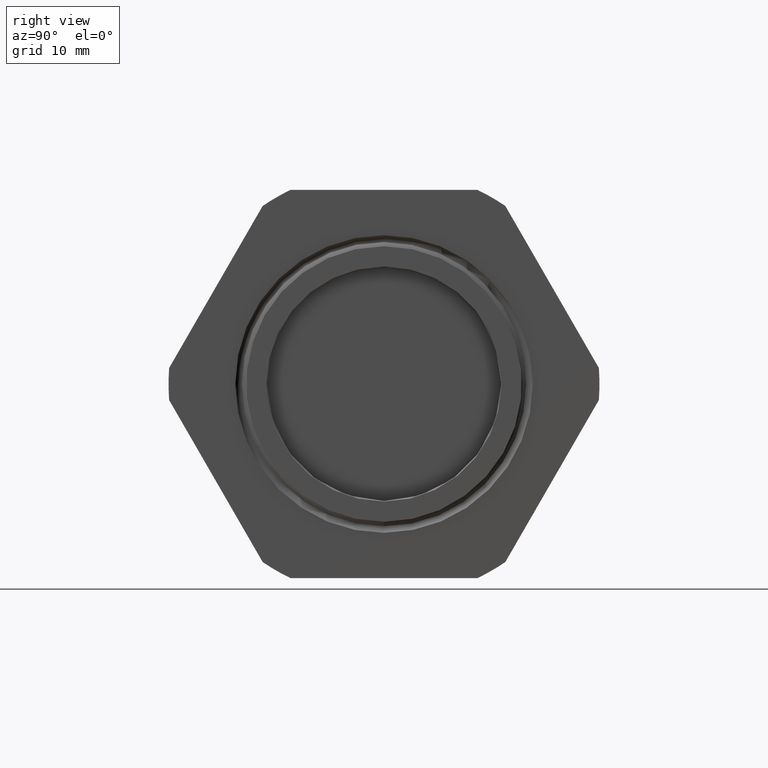
[diagram: clean part render]
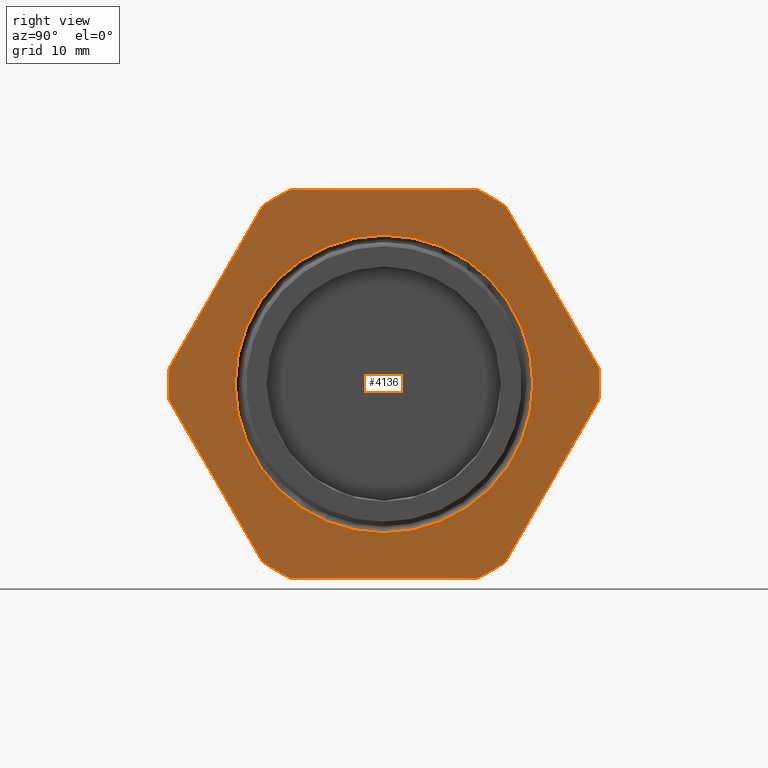
[diagram: same view with one face highlighted and labeled with its STEP entity id]
A machine part, right view. The second image highlights one B-rep face of the part: STEP entity #4136.
In plain terms, the highlighted planar face has unit normal (1, 0, 0).
Its self-contained STEP definition (entity closure, byte-faithful):
#290 = VERTEX_POINT ( 'NONE', #952 ) ;
#305 = EDGE_CURVE ( 'NONE', #290, #306, #987, .T. ) ;
#306 = VERTEX_POINT ( 'NONE', #983 ) ;
#952 = CARTESIAN_POINT ( 'NONE',  ( -0.3100000000000000000, 9.810405007208754400E-017, 0.8010803616225625800 ) ) ;
#983 = CARTESIAN_POINT ( 'NONE',  ( -0.3100000000000000000, 0.0000000000000000000, -0.8010803616225625800 ) ) ;
#984 = DIRECTION ( 'NONE',  ( 0.0000000000000000000, 0.0000000000000000000, -1.000000000000000000 ) ) ;
#985 = DIRECTION ( 'NONE',  ( 1.000000000000000000, 0.0000000000000000000, 0.0000000000000000000 ) ) ;
#986 = AXIS2_PLACEMENT_3D ( 'NONE', #993, #985, #984 ) ;
#987 = CIRCLE ( 'NONE', #986, 0.8010803616225625800 ) ;
#993 = CARTESIAN_POINT ( 'NONE',  ( -0.3100000000000000000, 0.0000000000000000000, 0.0000000000000000000 ) ) ;
#1489 = CARTESIAN_POINT ( 'NONE',  ( -0.3100000000000000000, -0.5034471198646390800, 1.044999999999999900 ) ) ;
#1511 = CARTESIAN_POINT ( 'NONE',  ( -0.3100000000000000000, -0.6532729870224188700, 0.9584979952648866600 ) ) ;
#1517 = AXIS2_PLACEMENT_3D ( 'NONE', #1523, #1578, #1577 ) ;
#1518 = CIRCLE ( 'NONE', #1517, 1.159950000000000000 ) ;
#1523 = CARTESIAN_POINT ( 'NONE',  ( -0.3100000000000000000, 0.0000000000000000000, 0.0000000000000000000 ) ) ;
#1526 = DIRECTION ( 'NONE',  ( 0.0000000000000000000, -1.000000000000000000, 0.0000000000000000000 ) ) ;
#1527 = VECTOR ( 'NONE', #1526, 39.37007874015748100 ) ;
#1528 = CARTESIAN_POINT ( 'NONE',  ( -0.3100000000000000000, 2.089999999999999900, 1.044999999999999900 ) ) ;
#1529 = LINE ( 'NONE', #1528, #1527 ) ;
#1530 = CARTESIAN_POINT ( 'NONE',  ( -0.3100000000000000000, -0.5034471198646389700, -1.044999999999999900 ) ) ;
#1537 = DIRECTION ( 'NONE',  ( 0.0000000000000000000, 0.0000000000000000000, -1.000000000000000000 ) ) ;
#1538 = DIRECTION ( 'NONE',  ( 1.000000000000000000, 0.0000000000000000000, 0.0000000000000000000 ) ) ;
#1539 = AXIS2_PLACEMENT_3D ( 'NONE', #1546, #1538, #1537 ) ;
#1540 = CIRCLE ( 'NONE', #1539, 1.159950000000000000 ) ;
#1546 = CARTESIAN_POINT ( 'NONE',  ( -0.3100000000000000000, 0.0000000000000000000, 0.0000000000000000000 ) ) ;
#1547 = DIRECTION ( 'NONE',  ( 1.000000000000000000, 0.0000000000000000000, 0.0000000000000000000 ) ) ;
#1548 = CARTESIAN_POINT ( 'NONE',  ( -0.3100000000000000000, 0.0000000000000000000, 0.0000000000000000000 ) ) ;
#1549 = AXIS2_PLACEMENT_3D ( 'NONE', #1548, #1547, #1608 ) ;
#1550 = CIRCLE ( 'NONE', #1549, 1.159950000000000000 ) ;
#1551 = DIRECTION ( 'NONE',  ( 0.0000000000000000000, 0.5000000000000001100, -0.8660254037844386000 ) ) ;
#1552 = VECTOR ( 'NONE', #1551, 39.37007874015748100 ) ;
#1553 = CARTESIAN_POINT ( 'NONE',  ( -0.3100000000000000000, -0.3824965469547378400, -1.427496546954738300 ) ) ;
#1554 = LINE ( 'NONE', #1553, #1552 ) ;
#1565 = DIRECTION ( 'NONE',  ( 0.0000000000000000000, 1.000000000000000000, 0.0000000000000000000 ) ) ;
#1566 = VECTOR ( 'NONE', #1565, 39.37007874015748100 ) ;
#1567 = CARTESIAN_POINT ( 'NONE',  ( -0.3100000000000000000, 2.089999999999999900, -1.044999999999999900 ) ) ;
#1568 = LINE ( 'NONE', #1567, #1566 ) ;
#1569 = CARTESIAN_POINT ( 'NONE',  ( -0.3100000000000000000, 0.5034471198646389700, -1.044999999999999900 ) ) ;
#1570 = CARTESIAN_POINT ( 'NONE',  ( -0.3100000000000000000, 0.5034471198646388600, 1.044999999999999900 ) ) ;
#1571 = DIRECTION ( 'NONE',  ( 0.0000000000000000000, 0.0000000000000000000, -1.000000000000000000 ) ) ;
#1572 = DIRECTION ( 'NONE',  ( 1.000000000000000000, 0.0000000000000000000, 0.0000000000000000000 ) ) ;
#1573 = CARTESIAN_POINT ( 'NONE',  ( -0.3100000000000000000, 0.0000000000000000000, 0.0000000000000000000 ) ) ;
#1574 = AXIS2_PLACEMENT_3D ( 'NONE', #1573, #1572, #1571 ) ;
#1575 = CIRCLE ( 'NONE', #1574, 1.159950000000000000 ) ;
#1577 = DIRECTION ( 'NONE',  ( 0.0000000000000000000, 0.0000000000000000000, -1.000000000000000000 ) ) ;
#1578 = DIRECTION ( 'NONE',  ( 1.000000000000000000, 0.0000000000000000000, 0.0000000000000000000 ) ) ;
#1601 = CARTESIAN_POINT ( 'NONE',  ( -0.3100000000000000000, -0.6532729870224180900, -0.9584979952648871000 ) ) ;
#1608 = DIRECTION ( 'NONE',  ( 0.0000000000000000000, 0.0000000000000000000, -1.000000000000000000 ) ) ;
#1730 = DIRECTION ( 'NONE',  ( 0.0000000000000000000, -0.4999999999999996100, -0.8660254037844388200 ) ) ;
#1731 = VECTOR ( 'NONE', #1730, 39.37007874015748900 ) ;
#1732 = CARTESIAN_POINT ( 'NONE',  ( -0.3100000000000000000, -0.3824965469547395000, 1.427496546954737600 ) ) ;
#1733 = LINE ( 'NONE', #1732, #1731 ) ;
#1738 = CARTESIAN_POINT ( 'NONE',  ( -0.3100000000000000000, 0.0000000000000000000, 0.0000000000000000000 ) ) ;
#1739 = CIRCLE ( 'NONE', #1799, 1.159950000000000000 ) ;
#1797 = DIRECTION ( 'NONE',  ( 0.0000000000000000000, 0.0000000000000000000, -1.000000000000000000 ) ) ;
#1798 = DIRECTION ( 'NONE',  ( 1.000000000000000000, 0.0000000000000000000, 0.0000000000000000000 ) ) ;
#1799 = AXIS2_PLACEMENT_3D ( 'NONE', #1738, #1798, #1797 ) ;
#1800 = CARTESIAN_POINT ( 'NONE',  ( -0.3100000000000000000, 1.427496546954737800, 0.3824965469547383900 ) ) ;
#1801 = LINE ( 'NONE', #1800, #1860 ) ;
#1807 = CARTESIAN_POINT ( 'NONE',  ( -0.3100000000000000000, -1.156720106887057800, -0.08650200473511310300 ) ) ;
#1819 = CARTESIAN_POINT ( 'NONE',  ( -0.3100000000000000000, 0.6532729870224188700, -0.9584979952648864400 ) ) ;
#1821 = CARTESIAN_POINT ( 'NONE',  ( -0.3100000000000000000, 1.156720106887057600, -0.08650200473511303300 ) ) ;
#1837 = DIRECTION ( 'NONE',  ( 0.0000000000000000000, 0.0000000000000000000, -1.000000000000000000 ) ) ;
#1838 = DIRECTION ( 'NONE',  ( 1.000000000000000000, 0.0000000000000000000, 0.0000000000000000000 ) ) ;
#1839 = AXIS2_PLACEMENT_3D ( 'NONE', #1845, #1838, #1837 ) ;
#1840 = CIRCLE ( 'NONE', #1839, 0.8010803616225625800 ) ;
#1845 = CARTESIAN_POINT ( 'NONE',  ( -0.3100000000000000000, 0.0000000000000000000, 0.0000000000000000000 ) ) ;
#1859 = DIRECTION ( 'NONE',  ( 0.0000000000000000000, 0.4999999999999998300, 0.8660254037844386000 ) ) ;
#1860 = VECTOR ( 'NONE', #1859, 39.37007874015748900 ) ;
#1871 = CARTESIAN_POINT ( 'NONE',  ( -0.3100000000000000000, -1.156720106887058100, 0.08650200473511256100 ) ) ;
#1877 = CARTESIAN_POINT ( 'NONE',  ( -0.3100000000000000000, 1.156720106887057600, 0.08650200473511329700 ) ) ;
#1878 = DIRECTION ( 'NONE',  ( 0.0000000000000000000, -0.4999999999999998900, 0.8660254037844386000 ) ) ;
#1879 = VECTOR ( 'NONE', #1878, 39.37007874015748900 ) ;
#1880 = CARTESIAN_POINT ( 'NONE',  ( -0.3100000000000000000, 1.427496546954738000, -0.3824965469547384500 ) ) ;
#1881 = LINE ( 'NONE', #1880, #1879 ) ;
#1882 = DIRECTION ( 'NONE',  ( 0.0000000000000000000, 0.0000000000000000000, -1.000000000000000000 ) ) ;
#1883 = DIRECTION ( 'NONE',  ( 1.000000000000000000, 0.0000000000000000000, 0.0000000000000000000 ) ) ;
#1884 = CARTESIAN_POINT ( 'NONE',  ( -0.3100000000000000000, 0.0000000000000000000, 0.0000000000000000000 ) ) ;
#1885 = AXIS2_PLACEMENT_3D ( 'NONE', #1884, #1883, #1882 ) ;
#1886 = CIRCLE ( 'NONE', #1885, 1.159950000000000000 ) ;
#2103 = DIRECTION ( 'NONE',  ( 0.0000000000000000000, 0.0000000000000000000, -1.000000000000000000 ) ) ;
#2104 = DIRECTION ( 'NONE',  ( 1.000000000000000000, 0.0000000000000000000, 0.0000000000000000000 ) ) ;
#2105 = CARTESIAN_POINT ( 'NONE',  ( -0.3100000000000000000, 2.089999999999999900, 0.0000000000000000000 ) ) ;
#2106 = AXIS2_PLACEMENT_3D ( 'NONE', #2105, #2104, #2103 ) ;
#2107 = PLANE ( 'NONE',  #2106 ) ;
#2108 = FACE_OUTER_BOUND ( 'NONE', #4002, .T. ) ;
#2109 = FACE_BOUND ( 'NONE', #4134, .T. ) ;
#2146 = CARTESIAN_POINT ( 'NONE',  ( -0.3100000000000000000, 0.6532729870224187600, 0.9584979952648866600 ) ) ;
#3807 = VERTEX_POINT ( 'NONE', #1511 ) ;
#3827 = VERTEX_POINT ( 'NONE', #1489 ) ;
#3832 = ORIENTED_EDGE ( 'NONE', *, *, #3855, .T. ) ;
#3833 = ORIENTED_EDGE ( 'NONE', *, *, #3834, .T. ) ;
#3834 = EDGE_CURVE ( 'NONE', #3827, #3807, #1540, .T. ) ;
#3836 = VERTEX_POINT ( 'NONE', #1530 ) ;
#3838 = ORIENTED_EDGE ( 'NONE', *, *, #3839, .T. ) ;
#3839 = EDGE_CURVE ( 'NONE', #3847, #3827, #1529, .T. ) ;
#3842 = EDGE_CURVE ( 'NONE', #3854, #3985, #1518, .T. ) ;
#3843 = ORIENTED_EDGE ( 'NONE', *, *, #3842, .T. ) ;
#3846 = EDGE_CURVE ( 'NONE', #4149, #3847, #1575, .T. ) ;
#3847 = VERTEX_POINT ( 'NONE', #1570 ) ;
#3848 = ORIENTED_EDGE ( 'NONE', *, *, #3846, .T. ) ;
#3854 = VERTEX_POINT ( 'NONE', #1569 ) ;
#3855 = EDGE_CURVE ( 'NONE', #3836, #3854, #1568, .T. ) ;
#3861 = EDGE_CURVE ( 'NONE', #3992, #3868, #1554, .T. ) ;
#3863 = EDGE_CURVE ( 'NONE', #3868, #3836, #1550, .T. ) ;
#3868 = VERTEX_POINT ( 'NONE', #1601 ) ;
#3871 = ORIENTED_EDGE ( 'NONE', *, *, #3863, .T. ) ;
#3872 = ORIENTED_EDGE ( 'NONE', *, *, #3861, .T. ) ;
#3937 = ORIENTED_EDGE ( 'NONE', *, *, #3938, .T. ) ;
#3938 = EDGE_CURVE ( 'NONE', #3807, #4024, #1733, .T. ) ;
#3968 = EDGE_CURVE ( 'NONE', #3980, #4018, #1739, .T. ) ;
#3980 = VERTEX_POINT ( 'NONE', #1821 ) ;
#3981 = ORIENTED_EDGE ( 'NONE', *, *, #3968, .T. ) ;
#3985 = VERTEX_POINT ( 'NONE', #1819 ) ;
#3989 = ORIENTED_EDGE ( 'NONE', *, *, #305, .F. ) ;
#3990 = ORIENTED_EDGE ( 'NONE', *, *, #4010, .F. ) ;
#3992 = VERTEX_POINT ( 'NONE', #1807 ) ;
#3995 = ORIENTED_EDGE ( 'NONE', *, *, #4015, .T. ) ;
#3997 = EDGE_CURVE ( 'NONE', #3985, #3980, #1801, .T. ) ;
#4002 = EDGE_LOOP ( 'NONE', ( #4003, #3981, #4019, #3848, #3838, #3833, #3937, #3995, #3872, #3871, #3832, #3843 ) ) ;
#4003 = ORIENTED_EDGE ( 'NONE', *, *, #3997, .T. ) ;
#4010 = EDGE_CURVE ( 'NONE', #306, #290, #1840, .T. ) ;
#4015 = EDGE_CURVE ( 'NONE', #4024, #3992, #1886, .T. ) ;
#4017 = EDGE_CURVE ( 'NONE', #4018, #4149, #1881, .T. ) ;
#4018 = VERTEX_POINT ( 'NONE', #1877 ) ;
#4019 = ORIENTED_EDGE ( 'NONE', *, *, #4017, .T. ) ;
#4024 = VERTEX_POINT ( 'NONE', #1871 ) ;
#4134 = EDGE_LOOP ( 'NONE', ( #3990, #3989 ) ) ;
#4136 = ADVANCED_FACE ( 'NONE', ( #2109, #2108 ), #2107, .T. ) ;
#4149 = VERTEX_POINT ( 'NONE', #2146 ) ;